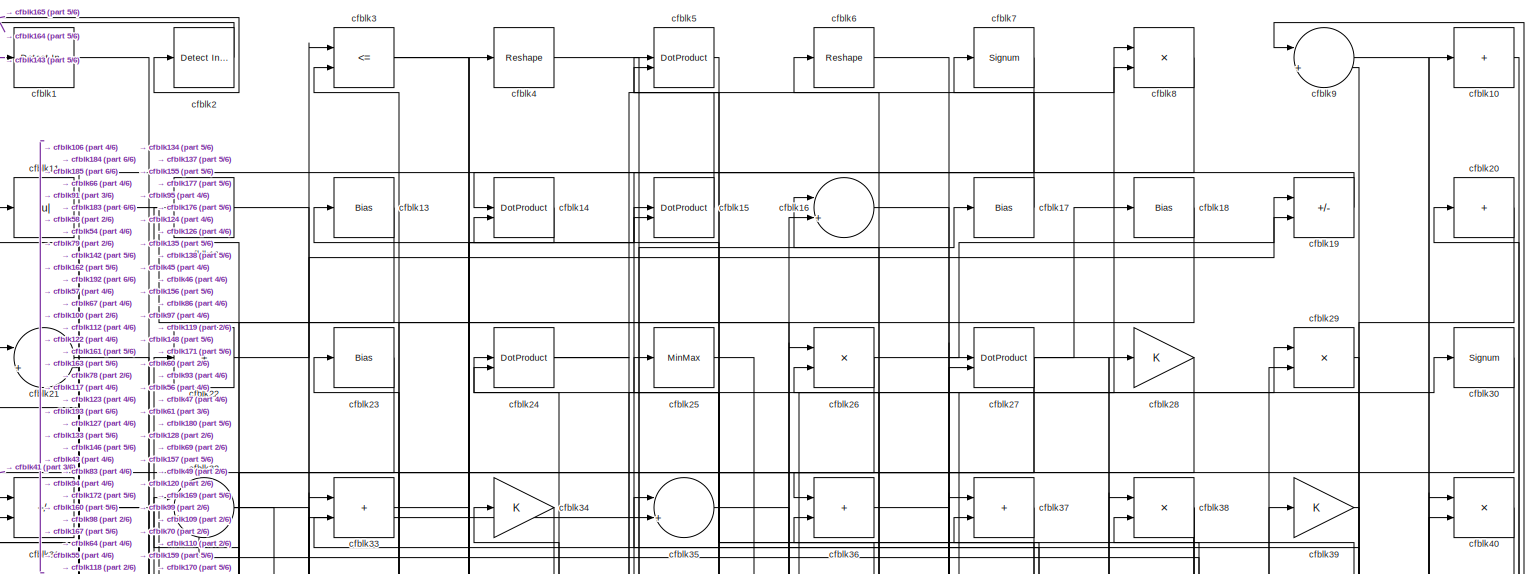
[diagram: root canvas - part 1/6, full width, top band]
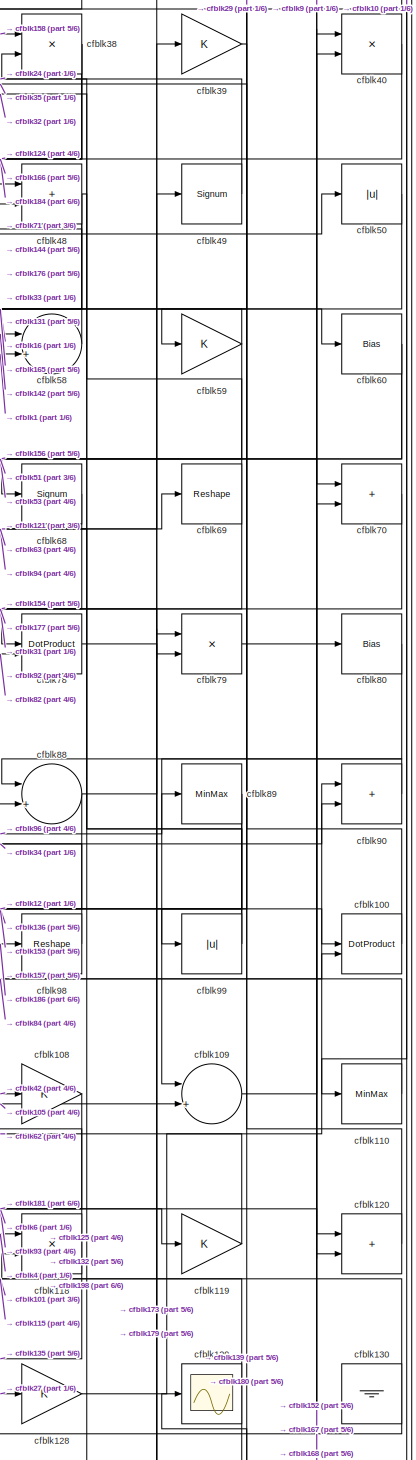
[diagram: root canvas - part 2/6, middle right region]
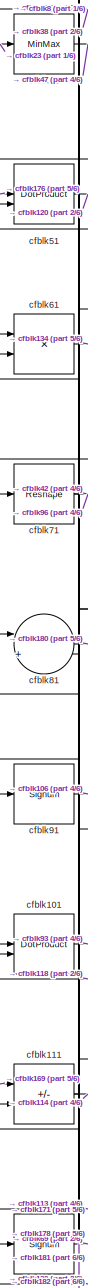
[diagram: root canvas - part 3/6, middle left region]
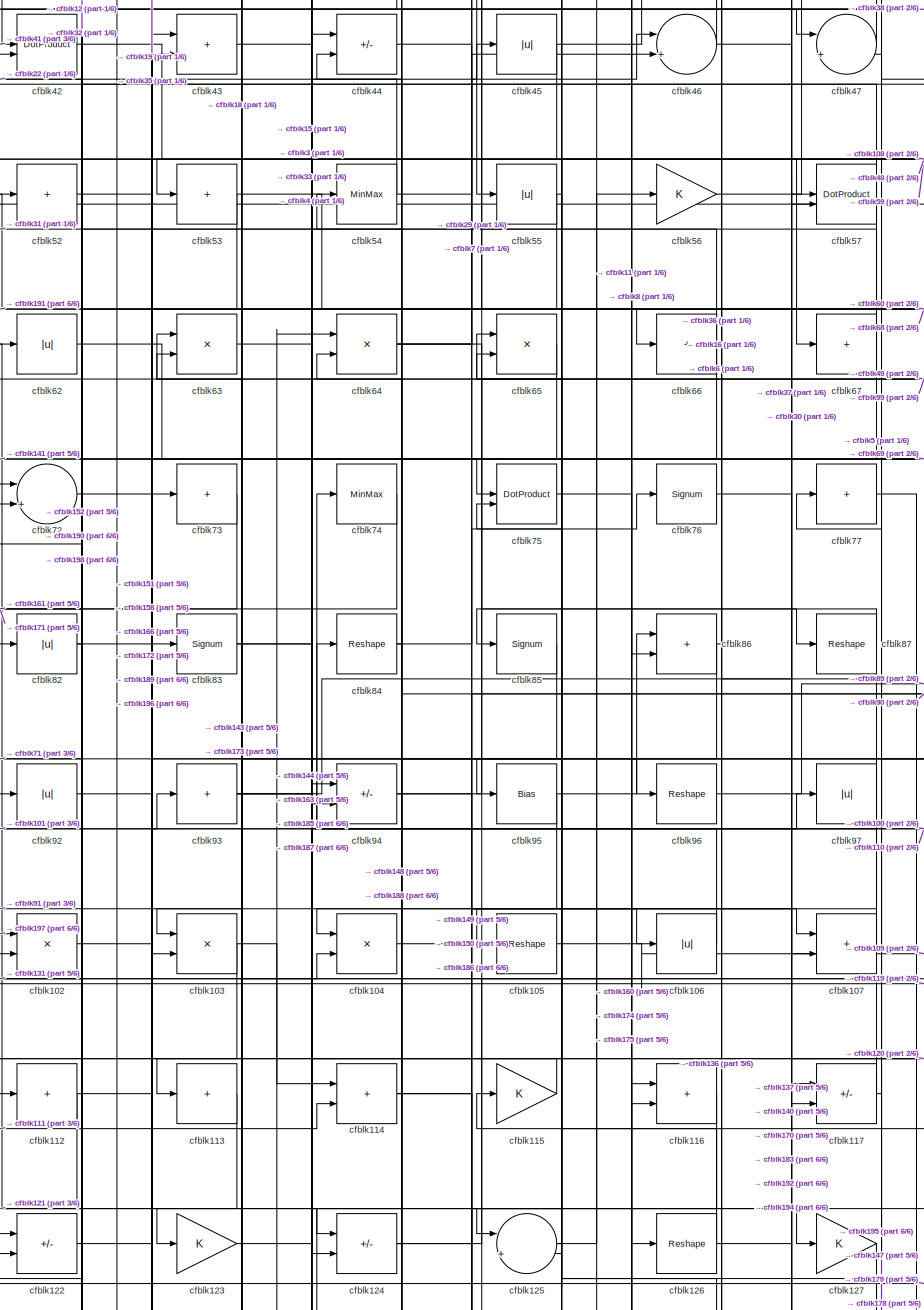
[diagram: root canvas - part 4/6, central region]
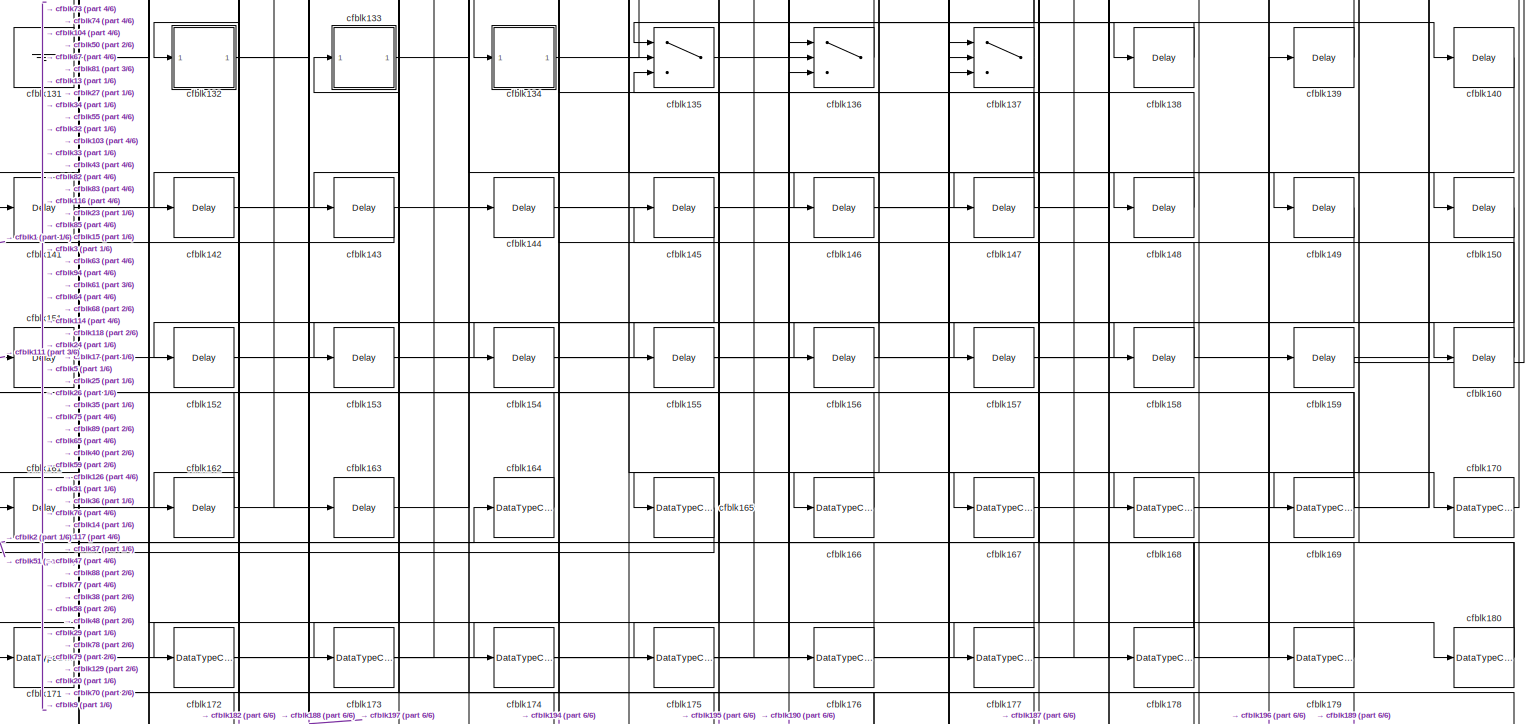
[diagram: root canvas - part 5/6, full width, bottom band]
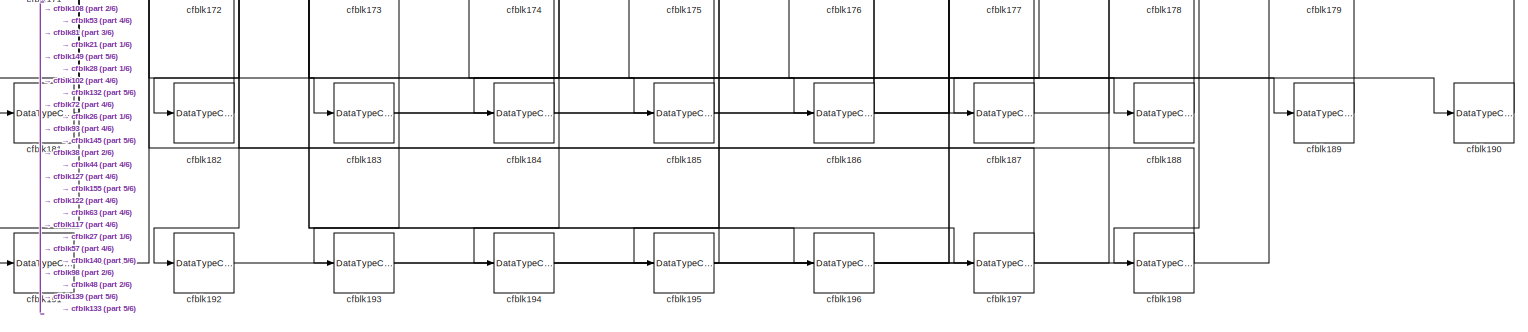
[diagram: root canvas - part 6/6, full width, bottom band]
MODEL slx_69489489b167
KIND model
CONFIG AbsTol = auto
CONFIG EnableMultiTasking = off
CONFIG FixedStep = auto
CONFIG MaxStep = auto
CONFIG MinStep = auto
CONFIG RelTol = 1e-3
CONFIG SampleTimeConstraint = Unconstrained
CONFIG SolverName = VariableStepAuto
CONFIG StartTime = 0.0
CONFIG StopTime = 10.0
BLOCK [Reference] cfblk1  REF=simulink/Logic and Bit
Operations/Detect
Increase
  LibrarySourceBlock = hdlsllib/Logic and Bit\nOperations/Detect\nIncrease
  SourceBlock = simulink/Logic and Bit\nOperations/Detect\nIncrease
  SourceType = Detect Increase
BLOCK [Sum] cfblk10
  IconShape = rectangular
  Inputs = +
BLOCK [DotProduct] cfblk100
  OutDataTypeStr = Inherit: Inherit via internal rule
BLOCK [DotProduct] cfblk101
  OutDataTypeStr = Inherit: Inherit via internal rule
BLOCK [Product] cfblk102
  Inputs = */
  RndMeth = Zero
  SaturateOnIntegerOverflow = on
BLOCK [Product] cfblk103
  Inputs = */
  RndMeth = Zero
  SaturateOnIntegerOverflow = on
BLOCK [Product] cfblk104
  Inputs = */
  RndMeth = Zero
  SaturateOnIntegerOverflow = on
BLOCK [Reshape] cfblk105
BLOCK [Abs] cfblk106
  SaturateOnIntegerOverflow = off
BLOCK [Sum] cfblk107
  IconShape = rectangular
BLOCK [Gain] cfblk108
BLOCK [Sum] cfblk109
  Inputs = |++
BLOCK [Abs] cfblk11
  SaturateOnIntegerOverflow = off
BLOCK [MinMax] cfblk110
BLOCK [Sum] cfblk111
  IconShape = rectangular
  Inputs = +-
BLOCK [Sum] cfblk112
  IconShape = rectangular
  Inputs = +
BLOCK [Sum] cfblk113
  IconShape = rectangular
  Inputs = +
BLOCK [Sum] cfblk114
  IconShape = rectangular
BLOCK [Gain] cfblk115
BLOCK [Sum] cfblk116
  IconShape = rectangular
BLOCK [Sum] cfblk117
  IconShape = rectangular
  Inputs = +-
BLOCK [Product] cfblk118
  Inputs = */
  RndMeth = Zero
  SaturateOnIntegerOverflow = on
BLOCK [Gain] cfblk119
BLOCK [Sum] cfblk12
  IconShape = rectangular
  Inputs = +
BLOCK [Sum] cfblk120
  IconShape = rectangular
BLOCK [Signum] cfblk121
BLOCK [Sum] cfblk122
  IconShape = rectangular
  Inputs = +-
BLOCK [Gain] cfblk123
BLOCK [Sum] cfblk124
  IconShape = rectangular
  Inputs = +-
BLOCK [Sum] cfblk125
  Inputs = |++
BLOCK [Reshape] cfblk126
BLOCK [Gain] cfblk127
BLOCK [Gain] cfblk128
BLOCK [Scope] cfblk129
  Floating = off
  NumInputPorts = 1
  ScopeSpecificationString = Simulink.scopes.TimeScopeBlockCfg('CurrentConfiguration', extmgr.ConfigurationSet(extmgr.Configuration('Core','General UI',true),extmgr.Configuration('Core','Source UI',true),extmgr.Configuration('Sources','WiredSimulink',true,'DataLoggingVariableName','ScopeData2','DataLoggingSaveFormat','Array','DataLoggingLimitDataPoints',true,'DataLoggingDecimation','1'),extmgr.Configuration('Visuals','Time Do...<+868ch>
BLOCK [Bias] cfblk13
  Bias = 0.0
  SaturateOnIntegerOverflow = off
BLOCK [Ground] cfblk130
BLOCK [Ground] cfblk131
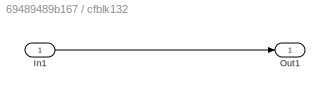
BLOCK [SubSystem] cfblk132
  LibrarySourceBlock = hdlsllib/Ports &\nSubsystems/Subsystem
BLOCK [Inport] cfblk132/In1
BLOCK [Outport] cfblk132/Out1
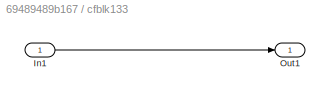
BLOCK [SubSystem] cfblk133
  LibrarySourceBlock = hdlsllib/Ports &\nSubsystems/Subsystem
BLOCK [Inport] cfblk133/In1
BLOCK [Outport] cfblk133/Out1
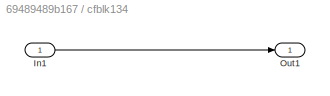
BLOCK [SubSystem] cfblk134
  LibrarySourceBlock = hdlsllib/Ports &\nSubsystems/Subsystem
BLOCK [Inport] cfblk134/In1
BLOCK [Outport] cfblk134/Out1
BLOCK [Switch] cfblk135
  InputSameDT = off
  SaturateOnIntegerOverflow = off
BLOCK [Switch] cfblk136
  InputSameDT = off
  SaturateOnIntegerOverflow = off
BLOCK [Switch] cfblk137
  InputSameDT = off
  SaturateOnIntegerOverflow = off
BLOCK [Delay] cfblk138
  InputPortMap = u0
  SampleTime = 1
BLOCK [Delay] cfblk139
  InputPortMap = u0
  SampleTime = 1
BLOCK [DotProduct] cfblk14
  OutDataTypeStr = Inherit: Inherit via internal rule
BLOCK [Delay] cfblk140
  InputPortMap = u0
  SampleTime = 1
BLOCK [Delay] cfblk141
  InputPortMap = u0
  SampleTime = 1
BLOCK [Delay] cfblk142
  InputPortMap = u0
  SampleTime = 1
BLOCK [Delay] cfblk143
  InputPortMap = u0
  SampleTime = 1
BLOCK [Delay] cfblk144
  InputPortMap = u0
  SampleTime = 1
BLOCK [Delay] cfblk145
  InputPortMap = u0
  SampleTime = 1
BLOCK [Delay] cfblk146
  InputPortMap = u0
  SampleTime = 1
BLOCK [Delay] cfblk147
  InputPortMap = u0
  SampleTime = 1
BLOCK [Delay] cfblk148
  InputPortMap = u0
  SampleTime = 1
BLOCK [Delay] cfblk149
  InputPortMap = u0
  SampleTime = 1
BLOCK [DotProduct] cfblk15
  OutDataTypeStr = Inherit: Inherit via internal rule
BLOCK [Delay] cfblk150
  InputPortMap = u0
  SampleTime = 1
BLOCK [Delay] cfblk151
  InputPortMap = u0
  SampleTime = 1
BLOCK [Delay] cfblk152
  InputPortMap = u0
  SampleTime = 1
BLOCK [Delay] cfblk153
  InputPortMap = u0
  SampleTime = 1
BLOCK [Delay] cfblk154
  InputPortMap = u0
  SampleTime = 1
BLOCK [Delay] cfblk155
  InputPortMap = u0
  SampleTime = 1
BLOCK [Delay] cfblk156
  InputPortMap = u0
  SampleTime = 1
BLOCK [Delay] cfblk157
  InputPortMap = u0
  SampleTime = 1
BLOCK [Delay] cfblk158
  InputPortMap = u0
  SampleTime = 1
BLOCK [Delay] cfblk159
  InputPortMap = u0
  SampleTime = 1
BLOCK [Sum] cfblk16
  Inputs = |++
BLOCK [Delay] cfblk160
  InputPortMap = u0
  SampleTime = 1
BLOCK [Delay] cfblk161
  InputPortMap = u0
  SampleTime = 1
BLOCK [Delay] cfblk162
  InputPortMap = u0
  SampleTime = 1
BLOCK [Delay] cfblk163
  InputPortMap = u0
  SampleTime = 1
BLOCK [DataTypeConversion] cfblk164
  OutDataTypeStr = uint8
  RndMeth = Floor
  SaturateOnIntegerOverflow = off
BLOCK [DataTypeConversion] cfblk165
  OutDataTypeStr = uint8
  RndMeth = Floor
  SaturateOnIntegerOverflow = off
BLOCK [DataTypeConversion] cfblk166
  OutDataTypeStr = uint8
  RndMeth = Floor
  SaturateOnIntegerOverflow = off
BLOCK [DataTypeConversion] cfblk167
  OutDataTypeStr = uint8
  RndMeth = Floor
  SaturateOnIntegerOverflow = off
BLOCK [DataTypeConversion] cfblk168
  OutDataTypeStr = uint8
  RndMeth = Floor
  SaturateOnIntegerOverflow = off
BLOCK [DataTypeConversion] cfblk169
  RndMeth = Floor
  SaturateOnIntegerOverflow = off
BLOCK [Bias] cfblk17
  Bias = 0.0
  SaturateOnIntegerOverflow = off
BLOCK [DataTypeConversion] cfblk170
  OutDataTypeStr = uint8
  RndMeth = Floor
  SaturateOnIntegerOverflow = off
BLOCK [DataTypeConversion] cfblk171
  RndMeth = Floor
  SaturateOnIntegerOverflow = off
BLOCK [DataTypeConversion] cfblk172
  OutDataTypeStr = uint8
  RndMeth = Floor
  SaturateOnIntegerOverflow = off
BLOCK [DataTypeConversion] cfblk173
  RndMeth = Floor
  SaturateOnIntegerOverflow = off
BLOCK [DataTypeConversion] cfblk174
  OutDataTypeStr = uint8
  RndMeth = Floor
  SaturateOnIntegerOverflow = off
BLOCK [DataTypeConversion] cfblk175
  OutDataTypeStr = uint8
  RndMeth = Floor
  SaturateOnIntegerOverflow = off
BLOCK [DataTypeConversion] cfblk176
  RndMeth = Floor
  SaturateOnIntegerOverflow = off
BLOCK [DataTypeConversion] cfblk177
  OutDataTypeStr = uint8
  RndMeth = Floor
  SaturateOnIntegerOverflow = off
BLOCK [DataTypeConversion] cfblk178
  RndMeth = Floor
  SaturateOnIntegerOverflow = off
BLOCK [DataTypeConversion] cfblk179
  OutDataTypeStr = uint8
  RndMeth = Floor
  SaturateOnIntegerOverflow = off
BLOCK [Bias] cfblk18
  Bias = 0.0
  SaturateOnIntegerOverflow = off
BLOCK [DataTypeConversion] cfblk180
  RndMeth = Floor
  SaturateOnIntegerOverflow = off
BLOCK [DataTypeConversion] cfblk181
  OutDataTypeStr = uint8
  RndMeth = Floor
  SaturateOnIntegerOverflow = off
BLOCK [DataTypeConversion] cfblk182
  OutDataTypeStr = uint8
  RndMeth = Floor
  SaturateOnIntegerOverflow = off
BLOCK [DataTypeConversion] cfblk183
  RndMeth = Floor
  SaturateOnIntegerOverflow = off
BLOCK [DataTypeConversion] cfblk184
  OutDataTypeStr = uint8
  RndMeth = Floor
  SaturateOnIntegerOverflow = off
BLOCK [DataTypeConversion] cfblk185
  OutDataTypeStr = uint8
  RndMeth = Floor
  SaturateOnIntegerOverflow = off
BLOCK [DataTypeConversion] cfblk186
  RndMeth = Floor
  SaturateOnIntegerOverflow = off
BLOCK [DataTypeConversion] cfblk187
  OutDataTypeStr = uint8
  RndMeth = Floor
  SaturateOnIntegerOverflow = off
BLOCK [DataTypeConversion] cfblk188
  OutDataTypeStr = uint8
  RndMeth = Floor
  SaturateOnIntegerOverflow = off
BLOCK [DataTypeConversion] cfblk189
  OutDataTypeStr = uint8
  RndMeth = Floor
  SaturateOnIntegerOverflow = off
BLOCK [Sum] cfblk19
  IconShape = rectangular
  Inputs = +-
BLOCK [DataTypeConversion] cfblk190
  OutDataTypeStr = uint8
  RndMeth = Floor
  SaturateOnIntegerOverflow = off
BLOCK [DataTypeConversion] cfblk191
  OutDataTypeStr = uint8
  RndMeth = Floor
  SaturateOnIntegerOverflow = off
BLOCK [DataTypeConversion] cfblk192
  OutDataTypeStr = uint8
  RndMeth = Floor
  SaturateOnIntegerOverflow = off
BLOCK [DataTypeConversion] cfblk193
  OutDataTypeStr = uint8
  RndMeth = Floor
  SaturateOnIntegerOverflow = off
BLOCK [DataTypeConversion] cfblk194
  OutDataTypeStr = uint8
  RndMeth = Floor
  SaturateOnIntegerOverflow = off
BLOCK [DataTypeConversion] cfblk195
  OutDataTypeStr = uint8
  RndMeth = Floor
  SaturateOnIntegerOverflow = off
BLOCK [DataTypeConversion] cfblk196
  OutDataTypeStr = uint8
  RndMeth = Floor
  SaturateOnIntegerOverflow = off
BLOCK [DataTypeConversion] cfblk197
  OutDataTypeStr = uint8
  RndMeth = Floor
  SaturateOnIntegerOverflow = off
BLOCK [DataTypeConversion] cfblk198
  OutDataTypeStr = uint8
  RndMeth = Floor
  SaturateOnIntegerOverflow = off
BLOCK [Reference] cfblk2  REF=simulink/Logic and Bit
Operations/Detect
Increase
  LibrarySourceBlock = hdlsllib/Logic and Bit\nOperations/Detect\nIncrease
  SourceBlock = simulink/Logic and Bit\nOperations/Detect\nIncrease
  SourceType = Detect Increase
BLOCK [Sum] cfblk20
  IconShape = rectangular
  Inputs = +
BLOCK [Sum] cfblk21
  Inputs = |++
BLOCK [Sum] cfblk22
  IconShape = rectangular
  Inputs = +
BLOCK [Bias] cfblk23
  Bias = 0.0
  SaturateOnIntegerOverflow = off
BLOCK [DotProduct] cfblk24
  OutDataTypeStr = Inherit: Inherit via internal rule
BLOCK [MinMax] cfblk25
BLOCK [Product] cfblk26
  Inputs = */
  RndMeth = Zero
  SaturateOnIntegerOverflow = on
BLOCK [DotProduct] cfblk27
  OutDataTypeStr = Inherit: Inherit via internal rule
BLOCK [Gain] cfblk28
BLOCK [Product] cfblk29
  Inputs = */
  RndMeth = Zero
  SaturateOnIntegerOverflow = on
BLOCK [RelationalOperator] cfblk3
  InputSameDT = off
  Operator = <=
  OutDataTypeStr = boolean
BLOCK [Signum] cfblk30
BLOCK [Sum] cfblk31
  IconShape = rectangular
  Inputs = +-
BLOCK [Sum] cfblk32
  Inputs = |++
BLOCK [Sum] cfblk33
  IconShape = rectangular
BLOCK [Gain] cfblk34
BLOCK [Sum] cfblk35
  Inputs = |++
BLOCK [Sum] cfblk36
  IconShape = rectangular
BLOCK [Sum] cfblk37
  IconShape = rectangular
BLOCK [Product] cfblk38
  Inputs = */
  RndMeth = Zero
  SaturateOnIntegerOverflow = on
BLOCK [Gain] cfblk39
BLOCK [Reshape] cfblk4
BLOCK [Product] cfblk40
  Inputs = */
  RndMeth = Zero
  SaturateOnIntegerOverflow = on
BLOCK [MinMax] cfblk41
BLOCK [DotProduct] cfblk42
  OutDataTypeStr = Inherit: Inherit via internal rule
BLOCK [Sum] cfblk43
  IconShape = rectangular
BLOCK [Sum] cfblk44
  IconShape = rectangular
  Inputs = +-
BLOCK [Abs] cfblk45
  SaturateOnIntegerOverflow = off
BLOCK [Sum] cfblk46
  Inputs = |++
BLOCK [Sum] cfblk47
  Inputs = |++
BLOCK [Sum] cfblk48
  IconShape = rectangular
BLOCK [Signum] cfblk49
BLOCK [DotProduct] cfblk5
  OutDataTypeStr = Inherit: Inherit via internal rule
BLOCK [Abs] cfblk50
  SaturateOnIntegerOverflow = off
BLOCK [DotProduct] cfblk51
  OutDataTypeStr = Inherit: Inherit via internal rule
BLOCK [Sum] cfblk52
  IconShape = rectangular
  Inputs = +
BLOCK [Sum] cfblk53
  IconShape = rectangular
  Inputs = +
BLOCK [MinMax] cfblk54
BLOCK [Abs] cfblk55
  SaturateOnIntegerOverflow = off
BLOCK [Gain] cfblk56
BLOCK [DotProduct] cfblk57
  OutDataTypeStr = Inherit: Inherit via internal rule
BLOCK [Sum] cfblk58
  Inputs = |++
BLOCK [Gain] cfblk59
BLOCK [Reshape] cfblk6
BLOCK [Bias] cfblk60
  Bias = 0.0
  SaturateOnIntegerOverflow = off
BLOCK [Product] cfblk61
  Inputs = */
  RndMeth = Zero
  SaturateOnIntegerOverflow = on
BLOCK [Abs] cfblk62
  SaturateOnIntegerOverflow = off
BLOCK [Product] cfblk63
  Inputs = */
  RndMeth = Zero
  SaturateOnIntegerOverflow = on
BLOCK [Product] cfblk64
  Inputs = */
  RndMeth = Zero
  SaturateOnIntegerOverflow = on
BLOCK [Product] cfblk65
  Inputs = */
  RndMeth = Zero
  SaturateOnIntegerOverflow = on
BLOCK [Sum] cfblk66
  IconShape = rectangular
  Inputs = +
BLOCK [Sum] cfblk67
  IconShape = rectangular
  Inputs = +
BLOCK [Signum] cfblk68
BLOCK [Reshape] cfblk69
BLOCK [Signum] cfblk7
BLOCK [Sum] cfblk70
  IconShape = rectangular
BLOCK [Reshape] cfblk71
BLOCK [Sum] cfblk72
  Inputs = |++
BLOCK [Sum] cfblk73
  IconShape = rectangular
  Inputs = +
BLOCK [MinMax] cfblk74
BLOCK [DotProduct] cfblk75
  OutDataTypeStr = Inherit: Inherit via internal rule
BLOCK [Signum] cfblk76
BLOCK [Sum] cfblk77
  IconShape = rectangular
  Inputs = +
BLOCK [DotProduct] cfblk78
  OutDataTypeStr = Inherit: Inherit via internal rule
BLOCK [Product] cfblk79
  Inputs = */
  RndMeth = Zero
  SaturateOnIntegerOverflow = on
BLOCK [Product] cfblk8
  Inputs = */
  RndMeth = Zero
  SaturateOnIntegerOverflow = on
BLOCK [Bias] cfblk80
  Bias = 0.0
  SaturateOnIntegerOverflow = off
BLOCK [Sum] cfblk81
  Inputs = |++
BLOCK [Abs] cfblk82
  SaturateOnIntegerOverflow = off
BLOCK [Signum] cfblk83
BLOCK [Reshape] cfblk84
BLOCK [Signum] cfblk85
BLOCK [Sum] cfblk86
  IconShape = rectangular
BLOCK [Reshape] cfblk87
BLOCK [Sum] cfblk88
  Inputs = |++
BLOCK [MinMax] cfblk89
BLOCK [Sum] cfblk9
  Inputs = |++
BLOCK [Sum] cfblk90
  IconShape = rectangular
BLOCK [Signum] cfblk91
BLOCK [Abs] cfblk92
  SaturateOnIntegerOverflow = off
BLOCK [Sum] cfblk93
  IconShape = rectangular
  Inputs = +
BLOCK [Sum] cfblk94
  IconShape = rectangular
  Inputs = +-
BLOCK [Bias] cfblk95
  Bias = 0.0
  SaturateOnIntegerOverflow = off
BLOCK [Reshape] cfblk96
BLOCK [Abs] cfblk97
  SaturateOnIntegerOverflow = off
BLOCK [Reshape] cfblk98
BLOCK [Abs] cfblk99
  SaturateOnIntegerOverflow = off
LINE cfblk100:1 -> cfblk9:2
LINE cfblk101:1 -> cfblk93:1
LINE cfblk102:1 -> cfblk196:1
NET cfblk103:1 -> cfblk113:1, cfblk114:1
LINE cfblk104:1 -> cfblk107:1
LINE cfblk105:1 -> cfblk109:2
LINE cfblk106:1 -> cfblk11:1
LINE cfblk107:1 -> cfblk74:1
LINE cfblk108:1 -> cfblk181:1
LINE cfblk109:1 -> cfblk10:1
LINE cfblk10:1 -> cfblk110:1
LINE cfblk110:1 -> cfblk84:1
NET cfblk111:1 -> cfblk114:2, cfblk51:2
NET cfblk112:1 -> cfblk122:1, cfblk19:2
LINE cfblk113:1 -> cfblk121:1
NET cfblk114:1 -> cfblk149:1, cfblk150:1
LINE cfblk115:1 -> cfblk112:1
LINE cfblk116:1 -> cfblk173:1
NET cfblk117:1 -> cfblk147:1, cfblk3:2
NET cfblk118:1 -> cfblk101:2, cfblk135:2
LINE cfblk119:1 -> cfblk62:1
LINE cfblk11:1 -> cfblk126:1
LINE cfblk120:1 -> cfblk35:1
LINE cfblk121:1 -> cfblk69:1
LINE cfblk122:1 -> cfblk35:2
LINE cfblk123:1 -> cfblk97:1
NET cfblk124:1 -> cfblk16:2, cfblk90:2
NET cfblk125:1 -> cfblk56:1, cfblk75:2
NET cfblk126:1 -> cfblk140:1, cfblk65:2
LINE cfblk127:1 -> cfblk195:1
LINE cfblk128:1 -> cfblk90:1
LINE cfblk12:1 -> cfblk100:1
NET cfblk130:1 -> cfblk101:1, cfblk115:1
NET cfblk131:1 -> cfblk104:2, cfblk50:1, cfblk67:1
LINE cfblk132/In1:1 -> cfblk132/Out1:1
NET cfblk132:1 -> cfblk188:1, cfblk197:1
LINE cfblk133/In1:1 -> cfblk133/Out1:1
LINE cfblk133:1 -> cfblk15:1
LINE cfblk134/In1:1 -> cfblk134/Out1:1
LINE cfblk134:1 -> cfblk17:1
LINE cfblk135:1 -> cfblk26:1
LINE cfblk136:1 -> cfblk65:1
NET cfblk137:1 -> cfblk14:2, cfblk175:1
LINE cfblk138:1 -> cfblk135:1
LINE cfblk139:1 -> cfblk118:2
LINE cfblk13:1 -> cfblk142:1
LINE cfblk140:1 -> cfblk187:1
LINE cfblk141:1 -> cfblk103:2
LINE cfblk142:1 -> cfblk58:1
LINE cfblk143:1 -> cfblk1:1
LINE cfblk144:1 -> cfblk48:1
LINE cfblk145:1 -> cfblk194:1
LINE cfblk146:1 -> cfblk168:1
LINE cfblk147:1 -> cfblk135:3
LINE cfblk148:1 -> cfblk64:2
LINE cfblk149:1 -> cfblk182:1
LINE cfblk14:1 -> cfblk13:1
LINE cfblk150:1 -> cfblk174:1
LINE cfblk151:1 -> cfblk43:2
LINE cfblk152:1 -> cfblk70:2
LINE cfblk153:1 -> cfblk137:1
LINE cfblk154:1 -> cfblk88:2
LINE cfblk155:1 -> cfblk190:1
LINE cfblk156:1 -> cfblk26:2
LINE cfblk157:1 -> cfblk29:2
LINE cfblk158:1 -> cfblk38:1
LINE cfblk159:1 -> cfblk9:1
LINE cfblk15:1 -> cfblk5:1
LINE cfblk160:1 -> cfblk24:2
LINE cfblk161:1 -> cfblk33:1
LINE cfblk162:1 -> cfblk31:2
LINE cfblk163:1 -> cfblk94:2
LINE cfblk164:1 -> cfblk23:1
LINE cfblk165:1 -> cfblk2:1
LINE cfblk166:1 -> cfblk43:1
LINE cfblk167:1 -> cfblk40:1
LINE cfblk168:1 -> cfblk40:2
NET cfblk169:1 -> cfblk111:1, cfblk151:1
LINE cfblk16:1 -> cfblk60:1
LINE cfblk170:1 -> cfblk20:1
NET cfblk171:1 -> cfblk111:2, cfblk27:2, cfblk83:1
LINE cfblk172:1 -> cfblk73:1
NET cfblk173:1 -> cfblk136:3, cfblk64:1, cfblk79:1
LINE cfblk174:1 -> cfblk116:1
LINE cfblk175:1 -> cfblk116:2
NET cfblk176:1 -> cfblk48:2, cfblk51:1
LINE cfblk177:1 -> cfblk25:1
NET cfblk178:1 -> cfblk136:1, cfblk159:1, cfblk47:2, cfblk61:2
LINE cfblk179:1 -> cfblk77:1
LINE cfblk17:1 -> cfblk7:1
NET cfblk180:1 -> cfblk129:1, cfblk37:2
LINE cfblk181:1 -> cfblk81:1
LINE cfblk182:1 -> cfblk81:2
NET cfblk183:1 -> cfblk117:2, cfblk27:1
LINE cfblk184:1 -> cfblk21:1
LINE cfblk185:1 -> cfblk21:2
NET cfblk186:1 -> cfblk122:2, cfblk63:2, cfblk98:1
LINE cfblk187:1 -> cfblk44:1
LINE cfblk188:1 -> cfblk44:2
LINE cfblk189:1 -> cfblk133:1
LINE cfblk18:1 -> cfblk123:1
LINE cfblk190:1 -> cfblk72:1
LINE cfblk191:1 -> cfblk72:2
LINE cfblk192:1 -> cfblk57:1
LINE cfblk193:1 -> cfblk28:1
LINE cfblk194:1 -> cfblk57:2
LINE cfblk195:1 -> cfblk145:1
LINE cfblk196:1 -> cfblk139:1
LINE cfblk197:1 -> cfblk102:1
LINE cfblk198:1 -> cfblk102:2
LINE cfblk19:1 -> cfblk14:1
LINE cfblk1:1 -> cfblk58:2
LINE cfblk20:1 -> cfblk169:1
LINE cfblk21:1 -> cfblk183:1
LINE cfblk22:1 -> cfblk3:1
LINE cfblk23:1 -> cfblk41:1
NET cfblk24:1 -> cfblk167:1, cfblk8:2
LINE cfblk25:1 -> cfblk176:1
NET cfblk26:1 -> cfblk193:1, cfblk19:1
NET cfblk27:1 -> cfblk128:1, cfblk162:1, cfblk18:1, cfblk36:1
LINE cfblk28:1 -> cfblk192:1
LINE cfblk29:1 -> cfblk99:1
LINE cfblk2:1 -> cfblk164:1
LINE cfblk30:1 -> cfblk95:1
NET cfblk31:1 -> cfblk137:2, cfblk79:2
NET cfblk32:1 -> cfblk163:1, cfblk78:1
LINE cfblk33:1 -> cfblk94:1
LINE cfblk34:1 -> cfblk172:1
LINE cfblk35:1 -> cfblk138:1
LINE cfblk36:1 -> cfblk148:1
LINE cfblk37:1 -> cfblk61:1
NET cfblk38:1 -> cfblk124:2, cfblk184:1, cfblk71:1
LINE cfblk39:1 -> cfblk59:1
NET cfblk3:1 -> cfblk127:1, cfblk146:1
LINE cfblk40:1 -> cfblk166:1
LINE cfblk41:1 -> cfblk47:1
LINE cfblk42:1 -> cfblk108:1
LINE cfblk43:1 -> cfblk4:1
LINE cfblk44:1 -> cfblk186:1
NET cfblk45:1 -> cfblk52:1, cfblk8:1
NET cfblk46:1 -> cfblk117:1, cfblk36:2
LINE cfblk47:1 -> cfblk5:2
NET cfblk48:1 -> cfblk125:1, cfblk132:1, cfblk198:1
LINE cfblk49:1 -> cfblk24:1
LINE cfblk4:1 -> cfblk118:1
LINE cfblk50:1 -> cfblk165:1
LINE cfblk51:1 -> cfblk120:1
LINE cfblk52:1 -> cfblk66:1
NET cfblk53:1 -> cfblk191:1, cfblk68:1
NET cfblk54:1 -> cfblk22:1, cfblk46:1
NET cfblk55:1 -> cfblk105:1, cfblk152:1
LINE cfblk56:1 -> cfblk30:1
NET cfblk57:1 -> cfblk103:1, cfblk32:1
LINE cfblk58:1 -> cfblk33:2
NET cfblk59:1 -> cfblk156:1, cfblk53:1
LINE cfblk5:1 -> cfblk155:1
NET cfblk60:1 -> cfblk78:2, cfblk82:1
LINE cfblk61:1 -> cfblk134:1
LINE cfblk62:1 -> cfblk75:1
LINE cfblk63:1 -> cfblk144:1
NET cfblk64:1 -> cfblk29:1, cfblk46:2, cfblk87:1
LINE cfblk65:1 -> cfblk141:1
NET cfblk66:1 -> cfblk31:1, cfblk86:2
NET cfblk67:1 -> cfblk12:1, cfblk137:3
LINE cfblk68:1 -> cfblk154:1
NET cfblk69:1 -> cfblk32:2, cfblk92:1
LINE cfblk6:1 -> cfblk119:1
LINE cfblk70:1 -> cfblk177:1
NET cfblk71:1 -> cfblk42:1, cfblk96:1
LINE cfblk72:1 -> cfblk189:1
LINE cfblk73:1 -> cfblk171:1
LINE cfblk74:1 -> cfblk161:1
LINE cfblk75:1 -> cfblk160:1
LINE cfblk76:1 -> cfblk170:1
LINE cfblk77:1 -> cfblk178:1
LINE cfblk78:1 -> cfblk179:1
LINE cfblk79:1 -> cfblk80:1
LINE cfblk7:1 -> cfblk55:1
LINE cfblk80:1 -> cfblk109:1
LINE cfblk81:1 -> cfblk180:1
NET cfblk82:1 -> cfblk158:1, cfblk42:2
NET cfblk83:1 -> cfblk15:2, cfblk45:1
NET cfblk84:1 -> cfblk54:1, cfblk76:1
LINE cfblk85:1 -> cfblk143:1
NET cfblk86:1 -> cfblk124:1, cfblk6:1
LINE cfblk87:1 -> cfblk85:1
NET cfblk88:1 -> cfblk157:1, cfblk39:1
NET cfblk89:1 -> cfblk136:2, cfblk153:1
LINE cfblk8:1 -> cfblk91:1
LINE cfblk90:1 -> cfblk88:1
LINE cfblk91:1 -> cfblk106:1
LINE cfblk92:1 -> cfblk100:2
NET cfblk93:1 -> cfblk120:2, cfblk185:1, cfblk37:1
NET cfblk94:1 -> cfblk107:2, cfblk49:1
NET cfblk95:1 -> cfblk104:1, cfblk86:1
LINE cfblk96:1 -> cfblk89:1
NET cfblk97:1 -> cfblk125:2, cfblk16:1
LINE cfblk98:1 -> cfblk34:1
NET cfblk99:1 -> cfblk38:2, cfblk63:1
LINE cfblk9:1 -> cfblk70:1
note: NET lines group one-source signal fan-out (src -> all destinations, sorted); 1:1 wires keep LINE
